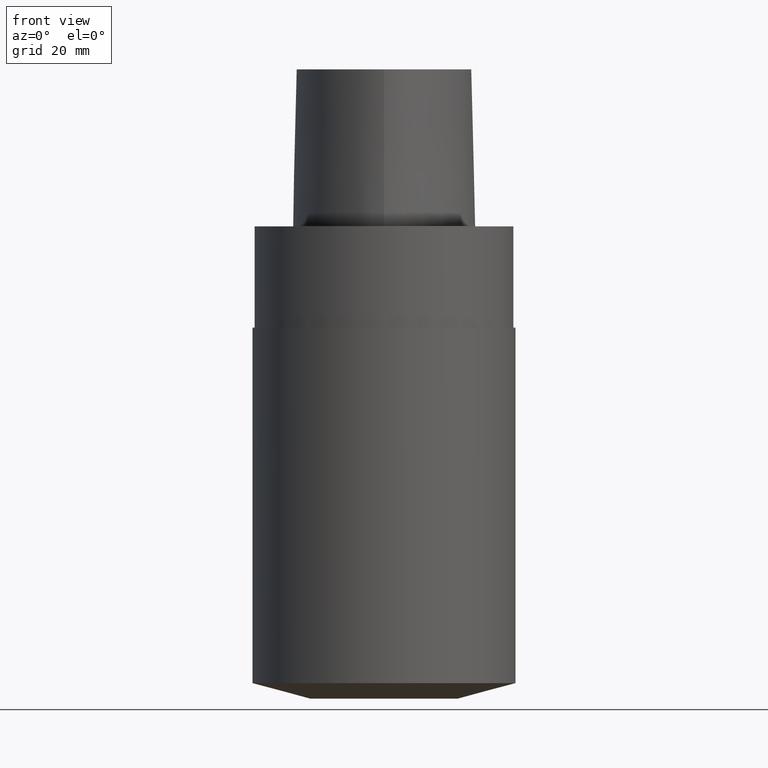
[diagram: clean part render]
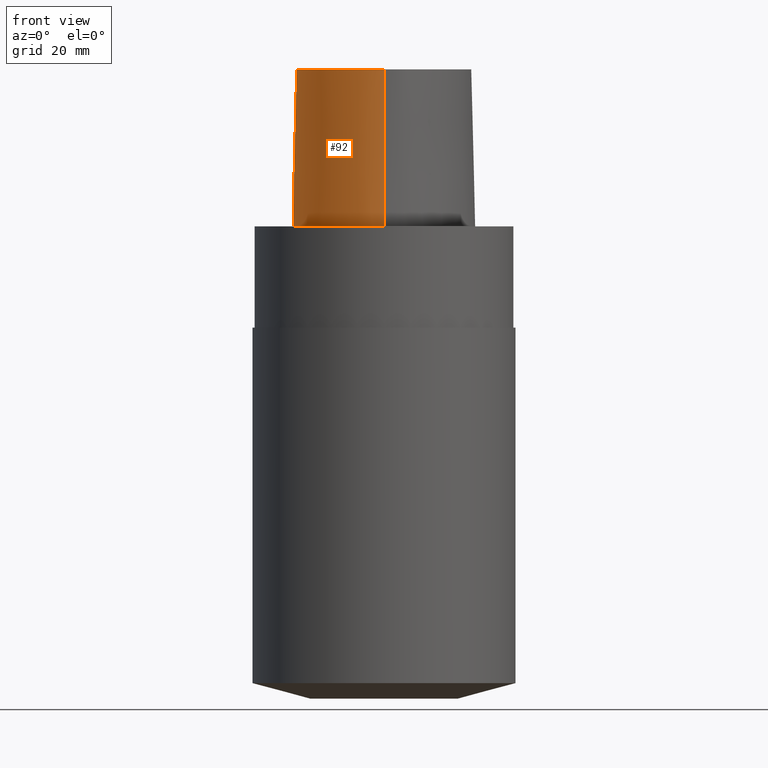
[diagram: same view with one face highlighted and labeled with its STEP entity id]
A machine part, front view. The second image highlights one B-rep face of the part: STEP entity #92.
In plain terms, the highlighted face is a freeform B-spline surface patch.
Its self-contained STEP definition (entity closure, byte-faithful):
#50=EDGE_CURVE('Unnamed[1]',#126,#127,#128,.T.);
#54=EDGE_CURVE('Unnamed[1]',#133,#126,#134,.T.);
#56=EDGE_CURVE('Unnamed[1]',#136,#133,#137,.T.);
#63=EDGE_CURVE('Unnamed[1]',#136,#127,#146,.T.);
#92=ADVANCED_FACE('Unnamed[1]',(#185),#186,.T.);
#126=VERTEX_POINT('',#218);
#127=VERTEX_POINT('',#219);
#128=B_SPLINE_CURVE_WITH_KNOTS('',3,(#220,#221,#222,#223,#224,#225,#226,#227,#228,#229,#230,#231,#232,#233,#234,#235,#236,#237),.UNSPECIFIED.,.F.,.F.,(4,1,1,1,1,1,1,1,1,2,1,1,1,1,4),(-6.6151339308743,-6.20168806019465,-5.78824218951501,-5.37479631883537,-4.96135044815572,-4.13445870679644,-3.30756696543715,-2.89412109475751,-2.48067522407786,-2.06722935339822,-1.65378348271857,-1.24033761203893,-0.826891741359287,-0.413445870679644,0.0),.UNSPECIFIED.);
#133=VERTEX_POINT('',#260);
#134=LINE('',#261,#262);
#136=VERTEX_POINT('',#265);
#137=B_SPLINE_CURVE_WITH_KNOTS('',3,(#266,#267,#268,#269,#270,#271,#272,#273,#274,#275,#276,#277,#278,#279,#280,#281),.UNSPECIFIED.,.F.,.F.,(4,1,1,1,1,1,1,1,1,1,1,1,1,4),(0.0,0.447924670568964,0.9388024242536,1.50591409090711,2.07314340012323,2.72424957442464,3.2253501842849,3.80982102049476,4.34867996267067,4.85900173381144,5.37972031856977,6.03459825488646,6.61113557741484,6.61513393087395),.UNSPECIFIED.);
#146=LINE('',#293,#294);
#185=FACE_OUTER_BOUND('',#344,.T.);
#186=B_SPLINE_SURFACE_WITH_KNOTS('',3,3,((#345,#346,#347,#348),(#349,#350,#351,#352),(#353,#354,#355,#356),(#357,#358,#359,#360),(#361,#362,#363,#364),(#365,#366,#367,#368),(#369,#370,#371,#372),(#373,#374,#375,#376),(#377,#378,#379,#380),(#381,#382,#383,#384),(#385,#386,#387,#388),(#389,#390,#391,#392),(#393,#394,#395,#396),(#397,#398,#399,#400),(#401,#402,#403,#404),(#405,#406,#407,#408),(#409,#410,#411,#412),(#413,#414,#415,#416)),.UNSPECIFIED.,.F.,.F.,.F.,(4,1,1,1,1,1,1,1,1,2,1,1,1,1,4),(4,4),(-6.6151339308743,-6.20168806019465,-5.78824218951501,-5.37479631883537,-4.96135044815572,-4.13445870679644,-3.30756696543715,-2.89412109475751,-2.48067522407786,-2.06722935339822,-1.65378348271857,-1.24033761203893,-0.826891741359287,-0.413445870679644,0.0),(-3.8,0.0),.UNSPECIFIED.);
#218=CARTESIAN_POINT('',(0.04359356758149,-23.4691235068931,7.78075697532443E-032));
#219=CARTESIAN_POINT('',(-0.045171994691285,20.6766009553285,1.6755590516169E-031));
#220=CARTESIAN_POINT('',(0.04359356758149,-23.4691235068931,7.78075697532443E-032));
#221=CARTESIAN_POINT('',(-1.4714994713963,-23.4767895315797,2.46519032881566E-032));
#222=CARTESIAN_POINT('',(-4.43923476371401,-22.821149804767,-4.93038065763132E-032));
#223=CARTESIAN_POINT('',(-8.35043230079961,-20.8000751253325,-9.86076131526265E-032));
#224=CARTESIAN_POINT('',(-11.744900222602,-18.1556117874078,-1.97215226305253E-031));
#225=CARTESIAN_POINT('',(-15.6989602501314,-14.0406306929147,-1.97215226305253E-031));
#226=CARTESIAN_POINT('',(-19.5352875070682,-8.00624990770787,1.97215226305253E-031));
#227=CARTESIAN_POINT('',(-21.7205626190491,-1.16081708945282,0.0));
#228=CARTESIAN_POINT('',(-22.2486616783342,4.54965558738736,0.0));
#229=CARTESIAN_POINT('',(-21.6646421256468,9.00229539124618,0.0));
#230=CARTESIAN_POINT('',(-20.3945635471922,11.7780544971003,0.0));
#231=CARTESIAN_POINT('',(-18.5925528034471,14.1980602922581,0.0));
#232=CARTESIAN_POINT('',(-16.3226584122258,16.1777748720707,0.0));
#233=CARTESIAN_POINT('',(-12.5076407874579,18.2524201541303,9.86076131526265E-032));
#234=CARTESIAN_POINT('',(-8.46776192107786,19.679114377952,9.86076131526265E-032));
#235=CARTESIAN_POINT('',(-4.23043497193604,20.487781597334,1.97215226305253E-031));
#236=CARTESIAN_POINT('',(-1.42313094248379,20.6127745766442,1.10933564796705E-031));
#237=CARTESIAN_POINT('',(-0.045171994691285,20.6766009553285,1.6755590516169E-031));
#260=CARTESIAN_POINT('',(0.038736923393866,-22.5191997536361,38.0));
#261=CARTESIAN_POINT('',(0.038736923393866,-22.5191997536361,38.0));
#262=VECTOR('',#527,38.0118715498723);
#265=CARTESIAN_POINT('',(-0.001218547003662,19.7276821925089,38.0));
#266=CARTESIAN_POINT('',(-0.001218547003662,19.7276821925089,38.0));
#267=CARTESIAN_POINT('',(-1.49408492138443,19.6585333605309,38.0));
#268=CARTESIAN_POINT('',(-4.62297391420352,19.513604770166,38.0));
#269=CARTESIAN_POINT('',(-9.56160616752212,18.4291575730197,38.0));
#270=CARTESIAN_POINT('',(-14.5427684976927,16.2697452580488,38.0));
#271=CARTESIAN_POINT('',(-19.4315563551602,12.5302108980807,38.0));
#272=CARTESIAN_POINT('',(-21.306358833612,6.76352894547076,38.0));
#273=CARTESIAN_POINT('',(-21.0724946936277,0.957075236984038,38.0));
#274=CARTESIAN_POINT('',(-19.7876470880144,-4.34628503581652,38.0));
#275=CARTESIAN_POINT('',(-17.5396999600095,-9.33314444653089,38.0));
#276=CARTESIAN_POINT('',(-14.645447733857,-13.7185760345629,38.0));
#277=CARTESIAN_POINT('',(-10.7996726536643,-17.856257282137,38.0));
#278=CARTESIAN_POINT('',(-6.00479510196376,-21.2687382067675,38.0));
#279=CARTESIAN_POINT('',(-1.90747171908525,-22.5250621415864,38.0));
#280=CARTESIAN_POINT('',(0.025424107066464,-22.5192678176378,38.0));
#281=CARTESIAN_POINT('',(0.038736923394311,-22.519199753636,38.0));
#293=CARTESIAN_POINT('',(-0.001218547003662,19.7276821925089,38.0));
#294=VECTOR('',#537,38.0118715498723);
#344=EDGE_LOOP('',(#582,#583,#584,#585));
#345=CARTESIAN_POINT('',(0.038736923393866,-22.5191997536361,38.0));
#346=CARTESIAN_POINT('',(0.04035580478973,-22.8358410047159,25.3333333333066));
#347=CARTESIAN_POINT('',(0.041974686185626,-23.1524822558133,12.6666666666934));
#348=CARTESIAN_POINT('',(0.04359356758149,-23.4691235068931,7.78075697532443E-032));
#349=CARTESIAN_POINT('',(-1.33786123484754,-22.5261650259856,38.0));
#350=CARTESIAN_POINT('',(-1.38240731367927,-22.8430399310626,25.3333333333066));
#351=CARTESIAN_POINT('',(-1.42695339249092,-23.1599147815484,12.6666666666934));
#352=CARTESIAN_POINT('',(-1.4714994713963,-23.4767895315797,2.46519032881566E-032));
#353=CARTESIAN_POINT('',(-4.08909358431842,-21.9268839879558,38.0));
#354=CARTESIAN_POINT('',(-4.20580731135515,-22.2249725500078,25.3333333333066));
#355=CARTESIAN_POINT('',(-4.32252104640446,-22.5230611651922,12.6666666666934));
#356=CARTESIAN_POINT('',(-4.43923476371401,-22.821149804767,-4.93038065763132E-032));
#357=CARTESIAN_POINT('',(-7.8333083619947,-19.9973514861616,38.0));
#358=CARTESIAN_POINT('',(-8.00568301809614,-20.2649260859405,25.3333333333066));
#359=CARTESIAN_POINT('',(-8.1780576640789,-20.532500564315,12.6666666666934));
#360=CARTESIAN_POINT('',(-8.35043230079961,-20.8000751253325,-9.86076131526265E-032));
#361=CARTESIAN_POINT('',(-11.1035071147626,-17.450554957873,38.0));
#362=CARTESIAN_POINT('',(-11.3173048160562,-17.6855739222454,25.3333333333066));
#363=CARTESIAN_POINT('',(-11.5311025116181,-17.9205928617968,12.6666666666934));
#364=CARTESIAN_POINT('',(-11.744900222602,-18.1556117874078,-1.97215226305253E-031));
#365=CARTESIAN_POINT('',(-14.9379535189057,-13.461132049697,38.0));
#366=CARTESIAN_POINT('',(-15.191622410671,-13.6542981711372,25.3333333333066));
#367=CARTESIAN_POINT('',(-15.4452913389853,-13.8474645327131,12.6666666666934));
#368=CARTESIAN_POINT('',(-15.6989602501314,-14.0406306929147,-1.97215226305253E-031));
#369=CARTESIAN_POINT('',(-18.6681263017223,-7.59391757463204,38.0));
#370=CARTESIAN_POINT('',(-18.9571800800711,-7.73136168081928,25.3333333333066));
#371=CARTESIAN_POINT('',(-19.2462337287194,-7.86880572399774,12.6666666666934));
#372=CARTESIAN_POINT('',(-19.5352875070682,-8.00624990770787,1.97215226305253E-031));
#373=CARTESIAN_POINT('',(-20.7857899858339,-0.952862819790525,38.0));
#374=CARTESIAN_POINT('',(-21.0973808305434,-1.02218087467418,25.3333333333066));
#375=CARTESIAN_POINT('',(-21.408971677436,-1.09149899580772,12.6666666666934));
#376=CARTESIAN_POINT('',(-21.7205626190491,-1.16081708945282,0.0));
#377=CARTESIAN_POINT('',(-21.2911760556836,4.5469215763113,38.0));
#378=CARTESIAN_POINT('',(-21.610337904926,4.54783292082248,25.3333333333066));
#379=CARTESIAN_POINT('',(-21.9294998290918,4.54874426225691,12.6666666666934));
#380=CARTESIAN_POINT('',(-22.2486616783342,4.54965558738736,0.0));
#381=CARTESIAN_POINT('',(-20.7345309521958,8.74909381391006,38.0));
#382=CARTESIAN_POINT('',(-21.0445680426217,8.83349432450556,25.3333333333066));
#383=CARTESIAN_POINT('',(-21.3546050933631,8.91789488065068,12.6666666666934));
#384=CARTESIAN_POINT('',(-21.6646421256468,9.00229539124618,0.0));
#385=CARTESIAN_POINT('',(-19.5531512296439,11.3174844040833,38.0));
#386=CARTESIAN_POINT('',(-19.8336219699984,11.4710077674213,25.3333333333066));
#387=CARTESIAN_POINT('',(-20.1140927680763,11.6245311337623,12.6666666666934));
#388=CARTESIAN_POINT('',(-20.3945635471922,11.7780544971003,0.0));
#389=CARTESIAN_POINT('',(-17.9100913688793,13.524027510437,38.0));
#390=CARTESIAN_POINT('',(-18.1375785458768,13.7487051053655,25.3333333333066));
#391=CARTESIAN_POINT('',(-18.365065665211,13.9733826973296,12.6666666666934));
#392=CARTESIAN_POINT('',(-18.5925528034471,14.1980602922581,0.0));
#393=CARTESIAN_POINT('',(-15.7996349656398,15.3762170634413,38.0));
#394=CARTESIAN_POINT('',(-15.9739761051783,15.6434029846179,25.3333333333066));
#395=CARTESIAN_POINT('',(-16.1483172726872,15.9105889315134,12.6666666666934));
#396=CARTESIAN_POINT('',(-16.3226584122258,16.1777748720707,0.0));
#397=CARTESIAN_POINT('',(-12.1175640002064,17.3825162484012,38.0));
#398=CARTESIAN_POINT('',(-12.2475895903055,17.6724842099619,25.3333333333066));
#399=CARTESIAN_POINT('',(-12.3776152070492,17.9624521925696,12.6666666666934));
#400=CARTESIAN_POINT('',(-12.5076407874579,18.2524201541303,9.86076131526265E-032));
#401=CARTESIAN_POINT('',(-8.21761151654222,18.7588585989994,38.0));
#402=CARTESIAN_POINT('',(-8.30099497910627,19.0656105427881,25.3333333333066));
#403=CARTESIAN_POINT('',(-8.38437843913309,19.3723624535439,12.6666666666934));
#404=CARTESIAN_POINT('',(-8.46776192107786,19.679114377952,9.86076131526265E-032));
#405=CARTESIAN_POINT('',(-4.13466093881225,19.5396850837055,38.0));
#406=CARTESIAN_POINT('',(-4.16658562115465,19.8557172636973,25.3333333333066));
#407=CARTESIAN_POINT('',(-4.19851029939059,20.1717494367229,12.6666666666934));
#408=CARTESIAN_POINT('',(-4.23043497193604,20.487781597334,1.97215226305253E-031));
#409=CARTESIAN_POINT('',(-1.37917220403684,19.6638560588908,38.0));
#410=CARTESIAN_POINT('',(-1.39382511685176,19.98016223565,25.3333333333066));
#411=CARTESIAN_POINT('',(-1.40847802945569,20.296468399885,12.6666666666934));
#412=CARTESIAN_POINT('',(-1.42313094248379,20.6127745766442,1.10933564796705E-031));
#413=CARTESIAN_POINT('',(-0.001218547003662,19.7276821925089,38.0));
#414=CARTESIAN_POINT('',(-0.015869696232855,20.043988446791,25.3333333333066));
#415=CARTESIAN_POINT('',(-0.030520845462092,20.3602947010464,12.6666666666934));
#416=CARTESIAN_POINT('',(-0.045171994691285,20.6766009553285,1.6755590516169E-031));
#527=DIRECTION('',(0.000127766510556,-0.024990186342461,-0.999687688361864));
#537=DIRECTION('',(-0.001156308434589,0.02496374748543,-0.999687688361864));
#582=ORIENTED_EDGE('',*,*,#50,.F.);
#583=ORIENTED_EDGE('',*,*,#54,.F.);
#584=ORIENTED_EDGE('',*,*,#56,.F.);
#585=ORIENTED_EDGE('',*,*,#63,.T.);